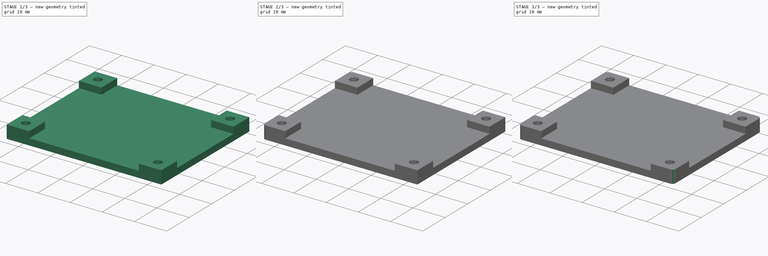
[diagram: build sequence overview — one tinted view per stage of 3, left to right]
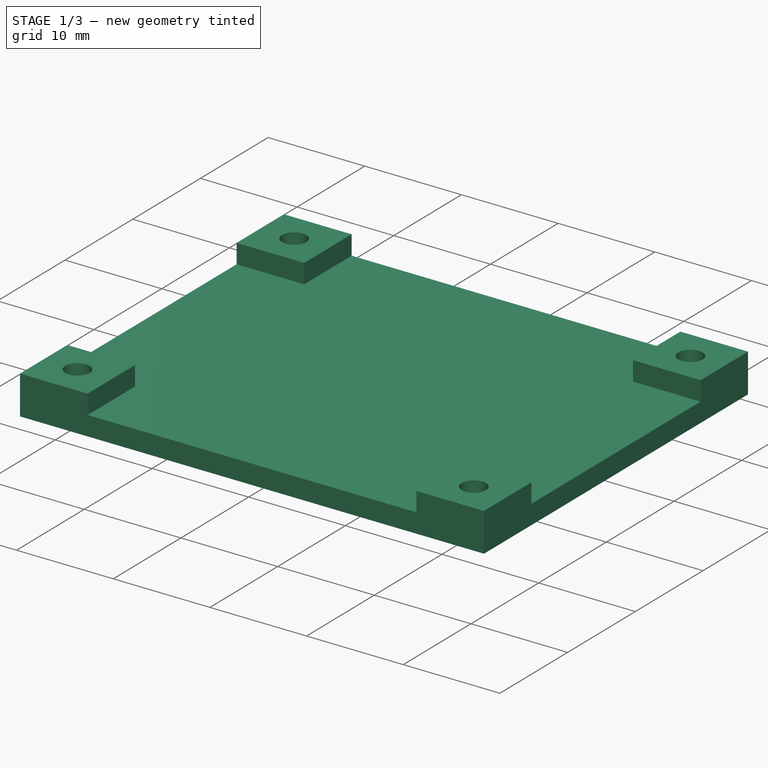
[diagram: stage 1 of 3 — iso view after this stage's code; geometry added in this stage tinted green]
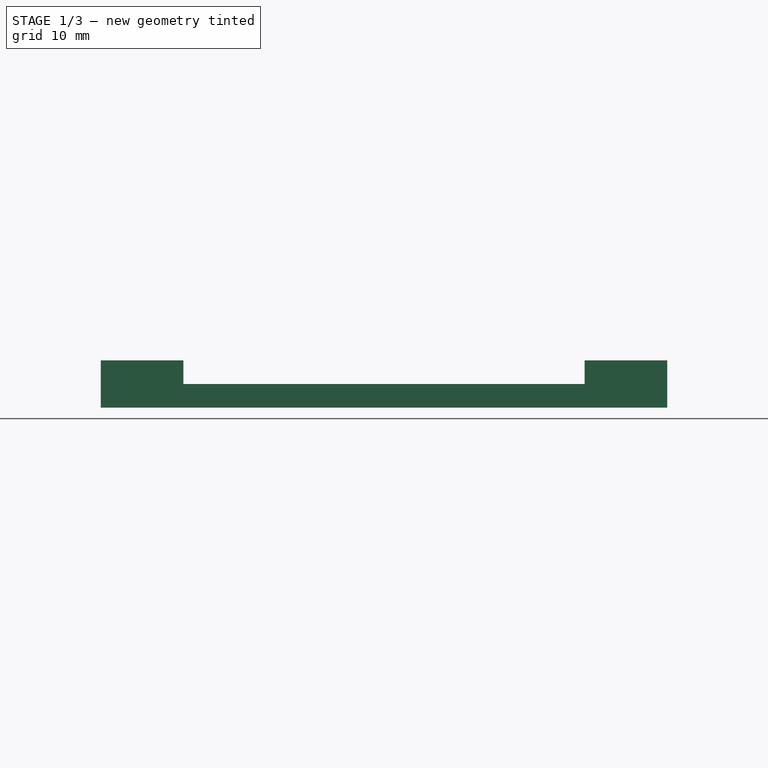
[diagram: stage 1 of 3 — front view after this stage's code; geometry added in this stage tinted green]
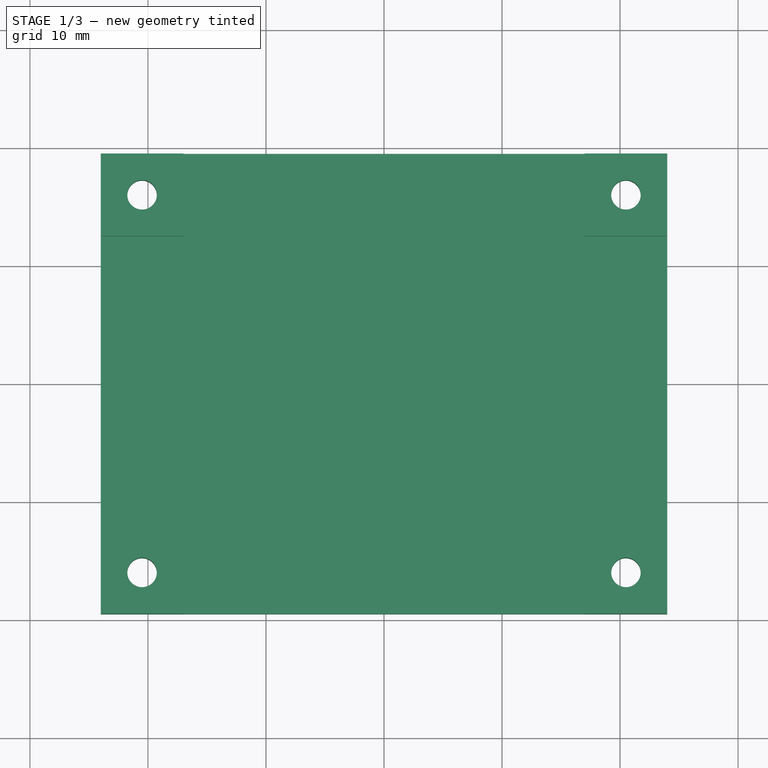
[diagram: stage 1 of 3 — top view after this stage's code; geometry added in this stage tinted green]
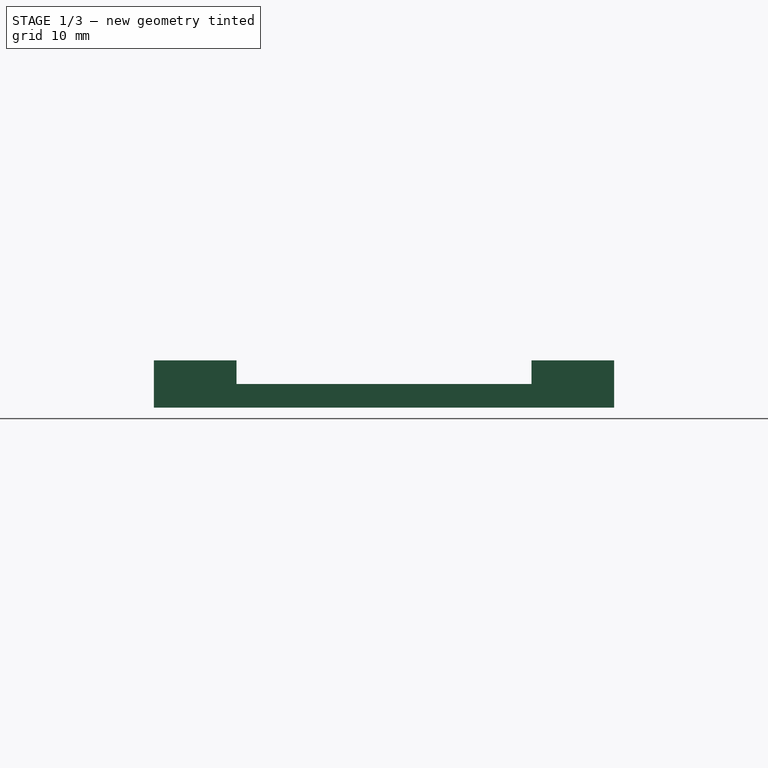
[diagram: stage 1 of 3 — right view after this stage's code; geometry added in this stage tinted green]
FCSTD DOCUMENT  (FreeCAD 0.18R16146 (Git))
Label: thermostat front cover
License: All rights reserved
LicenseURL: http://en.wikipedia.org/wiki/All_rights_reserved
objects: PartDesign::Fillet×4, Sketcher::SketchObject×2, PartDesign::Pad×2, PartDesign::Body×1
note: 11 computed .brp shape members not serialized (recipe doc carries the construction recipe); baked Part::Feature solids carry a one-line shape summary decoded from their .brp

FEATURE [Sketcher::SketchObject] Sketch
  MapMode = 5
  Support = -> [XY_Plane]
  sketch-geometry (8):
    g0: LineSegment StartX=-24 StartY=19.5 StartZ=0 EndX=24 EndY=19.5 EndZ=0
    g1: LineSegment StartX=24 StartY=19.5 StartZ=0 EndX=24 EndY=-19.5 EndZ=0
    g2: LineSegment StartX=24 StartY=-19.5 StartZ=0 EndX=-24 EndY=-19.5 EndZ=0
    g3: LineSegment StartX=-24 StartY=-19.5 StartZ=0 EndX=-24 EndY=19.5 EndZ=0
    g4: Circle CenterX=-20.5 CenterY=16 CenterZ=0 NormalX=0 NormalY=0 NormalZ=1 AngleXU=0 Radius=1.25
    g5: Circle CenterX=20.5 CenterY=-16 CenterZ=0 NormalX=0 NormalY=0 NormalZ=1 AngleXU=0 Radius=1.25
    g6: Circle CenterX=20.5 CenterY=16 CenterZ=0 NormalX=0 NormalY=0 NormalZ=1 AngleXU=0 Radius=1.25
    g7: Circle CenterX=-20.5 CenterY=-16 CenterZ=0 NormalX=0 NormalY=0 NormalZ=1 AngleXU=0 Radius=1.25
  constraints (23):
    c: Coincident(g2,g3)
    c: Coincident(g0,g3)
    c: Coincident(g1,g2)
    c: Coincident(g0,g1)
    c: DistanceY(g1,g1) = 39
    c: DistanceX(g0,g0) = 48
    c: Radius(g7) = 1.25
    c: Radius(g4) = 1.25
    c: Radius(g6) = 1.25
    c: Radius(g5) = 1.25
    c: Symmetric(g0,g1,g-1)
    c: Distance(g4,g0) = 3.5
    c: Distance(g4,g3) = 3.5
    c: Distance(g7,g3) = 3.5
    c: Distance(g7,g2) = 3.5
    c: Distance(g5,g2) = 3.5
    c: Distance(g5,g1) = 3.5
    c: Distance(g6,g0) = 3.5
    c: Distance(g6,g1) = 3.5
    c: Vertical(g3)
    c: Vertical(g1)
    c: Horizontal(g0)
    c: Horizontal(g2)
FEATURE [PartDesign::Pad] Pad
  Length = 2
  Length2 = 100
  Profile = -> Sketch
  Type = 0
FEATURE [Sketcher::SketchObject] Sketch001
  ExternalGeometry = -> [Sketch,Pad]
  MapMode = 5
  Placement = pos=(0,0,2) rot=(0,0,1;0rad)
  Support = -> [Pad]
  sketch-geometry (20):
    g0: LineSegment StartX=-17 StartY=19.5 StartZ=0 EndX=-24 EndY=19.5 EndZ=0
    g1: LineSegment StartX=-24 StartY=19.5 StartZ=0 EndX=-24 EndY=12.5 EndZ=0
    g2: LineSegment StartX=-24 StartY=12.5 StartZ=0 EndX=-17 EndY=12.5 EndZ=0
    g3: LineSegment StartX=-17 StartY=12.5 StartZ=0 EndX=-17 EndY=19.5 EndZ=0
    g4: Circle CenterX=-20.5 CenterY=16 CenterZ=0 NormalX=0 NormalY=0 NormalZ=1 AngleXU=0 Radius=1.25
    g5: LineSegment StartX=17 StartY=19.5 StartZ=0 EndX=24 EndY=19.5 EndZ=0
    g6: LineSegment StartX=24 StartY=19.5 StartZ=0 EndX=24 EndY=12.5 EndZ=0
    g7: LineSegment StartX=24 StartY=12.5 StartZ=0 EndX=17 EndY=12.5 EndZ=0
    g8: LineSegment StartX=17 StartY=12.5 StartZ=0 EndX=17 EndY=19.5 EndZ=0
    g9: Circle CenterX=20.5 CenterY=16 CenterZ=0 NormalX=0 NormalY=0 NormalZ=1 AngleXU=0 Radius=1.25
    g10: LineSegment StartX=-17 StartY=-19.5 StartZ=0 EndX=-24 EndY=-19.5 EndZ=0
    g11: LineSegment StartX=-24 StartY=-19.5 StartZ=0 EndX=-24 EndY=-12.5 EndZ=0
    g12: LineSegment StartX=-24 StartY=-12.5 StartZ=0 EndX=-17 EndY=-12.5 EndZ=0
    g13: LineSegment StartX=-17 StartY=-12.5 StartZ=0 EndX=-17 EndY=-19.5 EndZ=0
    g14: Circle CenterX=-20.5 CenterY=-16 CenterZ=0 NormalX=0 NormalY=0 NormalZ=1 AngleXU=0 Radius=1.25
    g15: LineSegment StartX=17 StartY=-19.5 StartZ=0 EndX=24 EndY=-19.5 EndZ=0
    g16: LineSegment StartX=24 StartY=-19.5 StartZ=0 EndX=24 EndY=-12.5 EndZ=0
    g17: LineSegment StartX=24 StartY=-12.5 StartZ=0 EndX=17 EndY=-12.5 EndZ=0
    g18: LineSegment StartX=17 StartY=-12.5 StartZ=0 EndX=17 EndY=-19.5 EndZ=0
    g19: Circle CenterX=20.5 CenterY=-16 CenterZ=0 NormalX=0 NormalY=0 NormalZ=1 AngleXU=0 Radius=1.25
  constraints (53):
    c: Coincident(g0,g1)
    c: Coincident(g1,g2)
    c: Coincident(g2,g3)
    c: Coincident(g3,g0)
    c: Horizontal(g0)
    c: Horizontal(g2)
    c: Vertical(g1)
    c: Vertical(g3)
    c: DistanceX(g0,g0) = 7
    c: DistanceY(g3,g3) = 7
    c: Radius(g4) = 1.25
    c: Symmetric(g0,g2,g4)
    c: DistanceY(g-4,g0) = 0
    c: DistanceX(g-4,g1) = 0
    c: Coincident(g5,g6)
    c: Coincident(g6,g7)
    c: Coincident(g7,g8)
    c: Coincident(g8,g5)
    c: Horizontal(g5)
    c: Horizontal(g7)
    c: Vertical(g6)
    c: Vertical(g8)
    c: Radius(g9) = 1.25
    c: Symmetric(g5,g7,g9)
    c: Coincident(g10,g11)
    c: Coincident(g11,g12)
    c: Coincident(g12,g13)
    c: Coincident(g13,g10)
    c: Horizontal(g10)
    c: Horizontal(g12)
    c: Vertical(g11)
    c: Vertical(g13)
    c: Radius(g14) = 1.25
    c: Symmetric(g10,g12,g14)
    c: Coincident(g15,g16)
    c: Coincident(g16,g17)
    c: Coincident(g17,g18)
    c: Coincident(g18,g15)
    c: Horizontal(g15)
    c: Horizontal(g17)
    c: Vertical(g16)
    c: Vertical(g18)
    c: Radius(g19) = 1.25
    c: Symmetric(g15,g17,g19)
    c: Equal(g3,g8)
    c: Equal(g8,g7)
    c: Equal(g7,g17)
    c: Equal(g17,g18)
    c: Equal(g18,g13)
    c: Equal(g13,g12)
    c: Coincident(g10,g-6)
    c: Coincident(g15,g-6)
    c: Coincident(g5,g-5)
FEATURE [PartDesign::Pad] Pad001
  BaseFeature = -> Pad
  Length = 2
  Length2 = 100
  Profile = -> Sketch001
  Type = 0
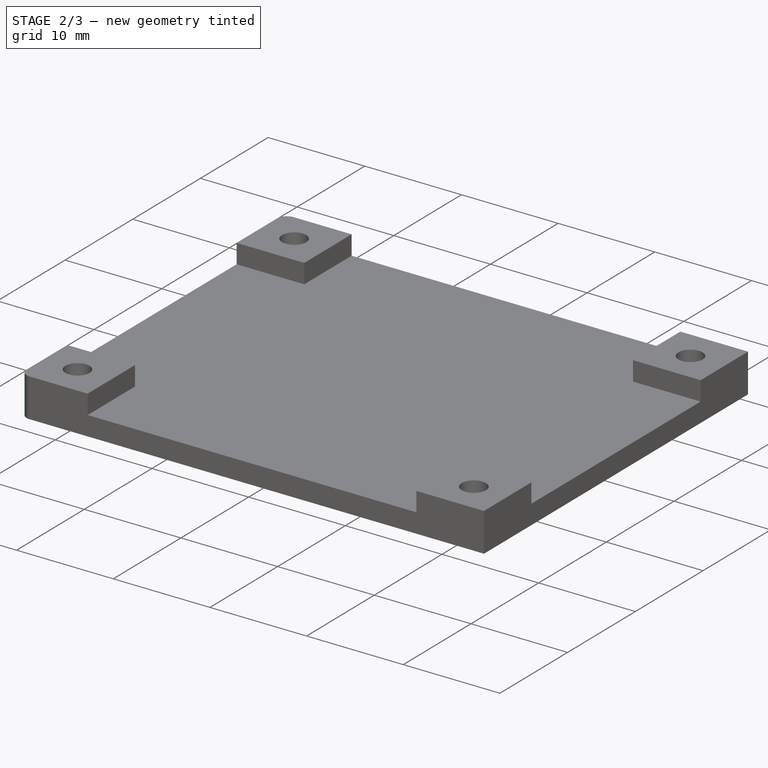
[diagram: stage 2 of 3 — iso view after this stage's code; geometry added in this stage tinted green]
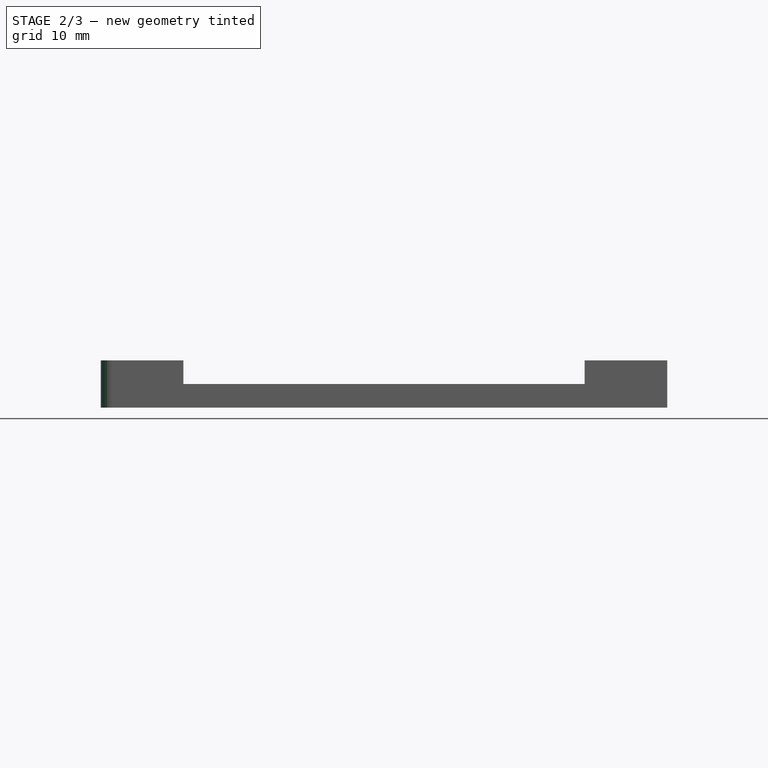
[diagram: stage 2 of 3 — front view after this stage's code; geometry added in this stage tinted green]
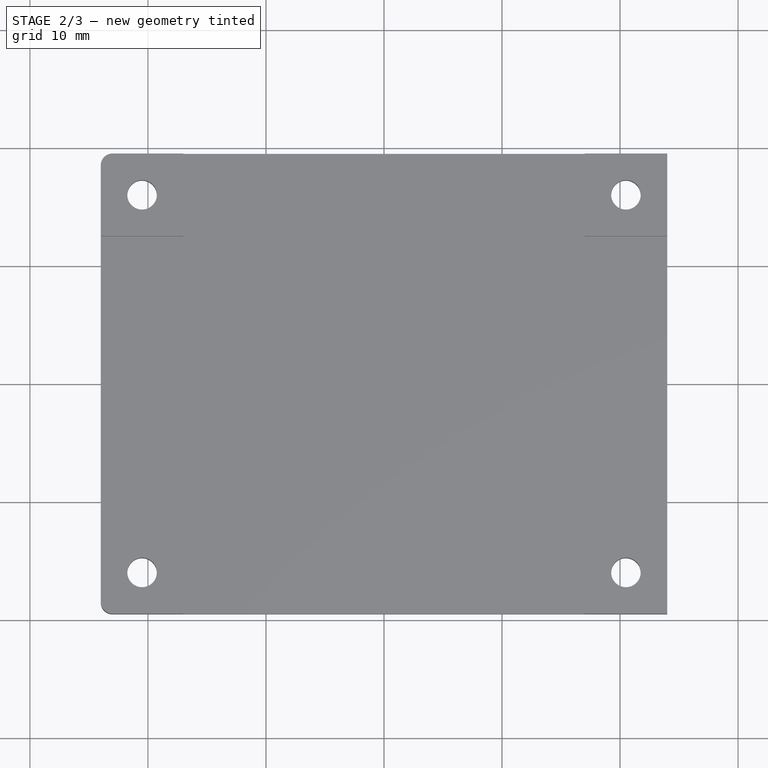
[diagram: stage 2 of 3 — top view after this stage's code; geometry added in this stage tinted green]
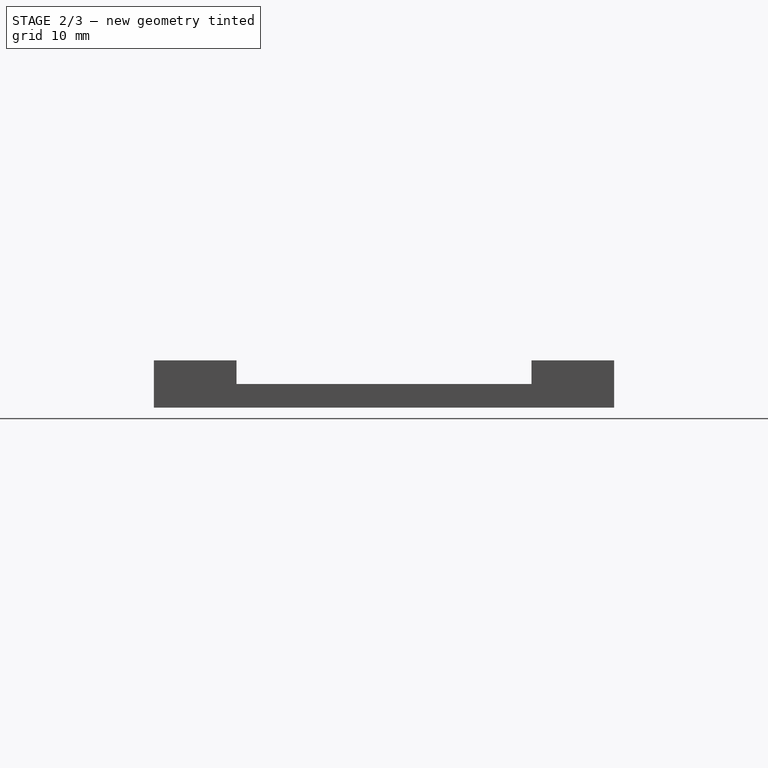
[diagram: stage 2 of 3 — right view after this stage's code; geometry added in this stage tinted green]
FEATURE [PartDesign::Fillet] Fillet
  Base = -> Pad001 [Edge1,Edge23]
  BaseFeature = -> Pad001
  Radius = 1
FEATURE [PartDesign::Fillet] Fillet001
  Base = -> Fillet [Edge37,Edge76]
  BaseFeature = -> Fillet
  Radius = 1
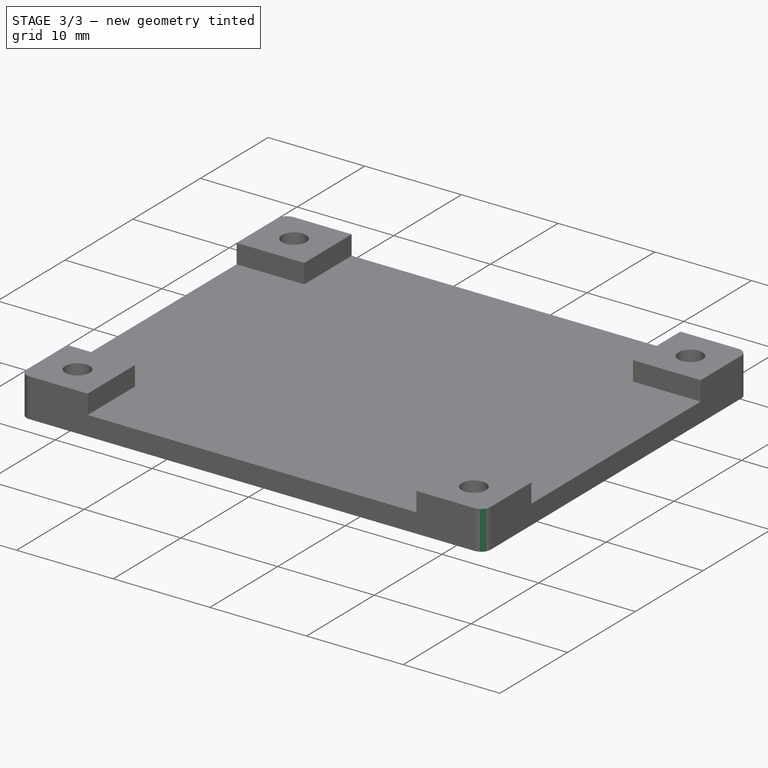
[diagram: stage 3 of 3 — iso view after this stage's code; geometry added in this stage tinted green]
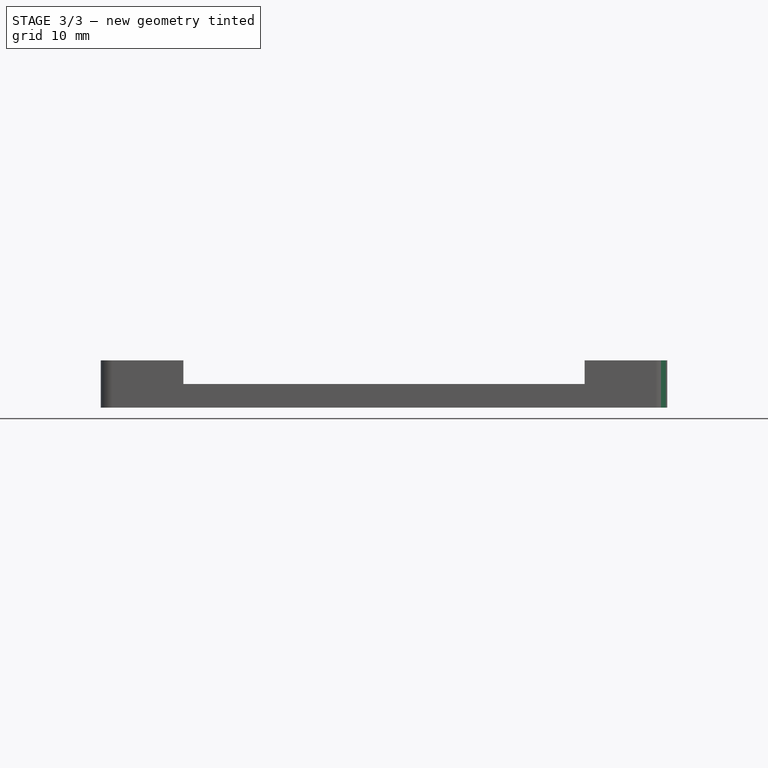
[diagram: stage 3 of 3 — front view after this stage's code; geometry added in this stage tinted green]
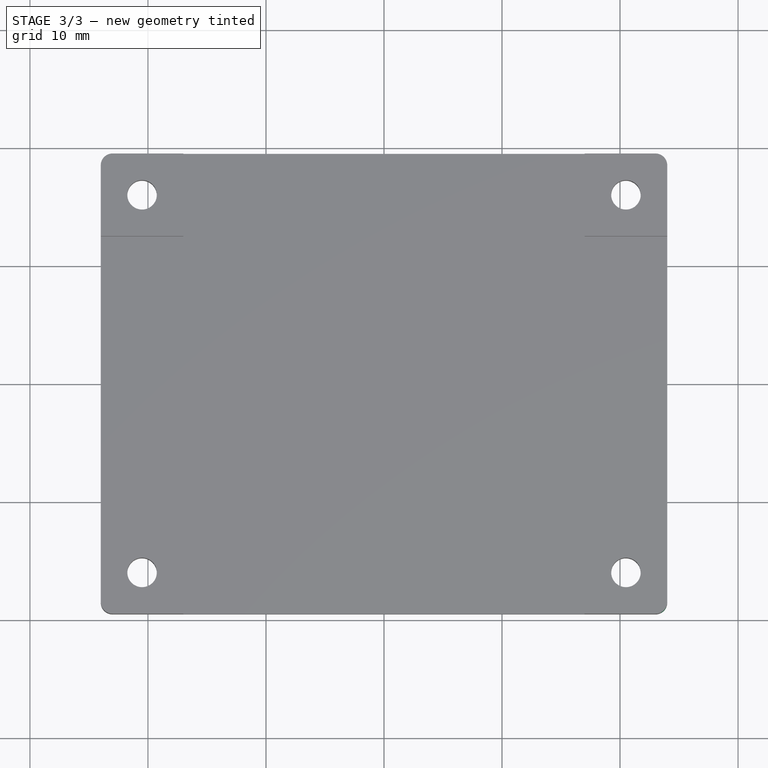
[diagram: stage 3 of 3 — top view after this stage's code; geometry added in this stage tinted green]
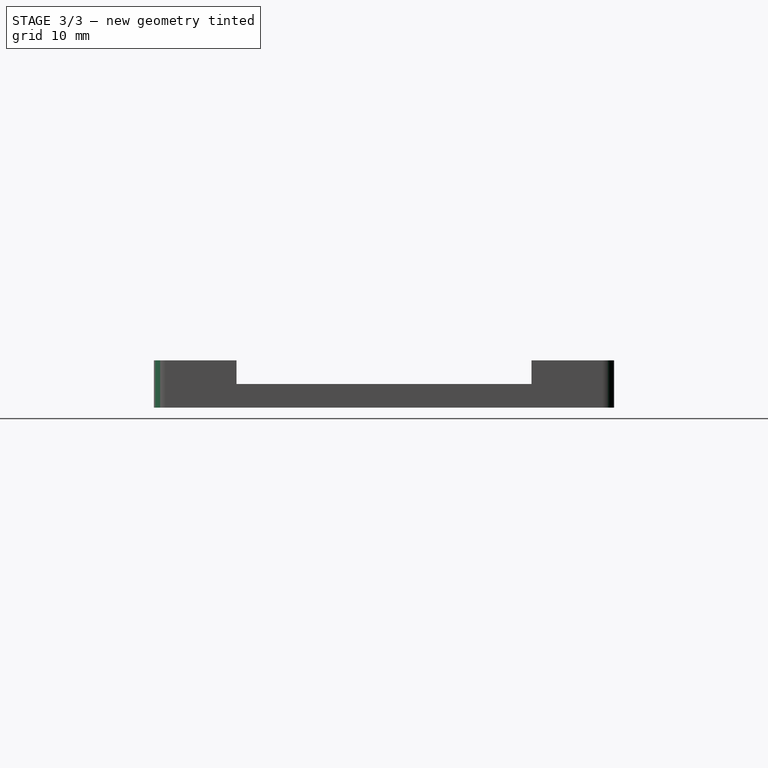
[diagram: stage 3 of 3 — right view after this stage's code; geometry added in this stage tinted green]
FEATURE [PartDesign::Fillet] Fillet002
  Base = -> Fillet001 [Edge20,Edge60]
  BaseFeature = -> Fillet001
  Radius = 1
FEATURE [PartDesign::Fillet] Fillet003
  Base = -> Fillet002 [Edge62,Edge21]
  BaseFeature = -> Fillet002
  Radius = 1
FEATURE [PartDesign::Body] Body
  Group = -> [Sketch,Pad,Sketch001,Pad001,Fillet,Fillet001,Fillet002,Fillet003]
  Origin = -> Origin
  Tip = -> Fillet003
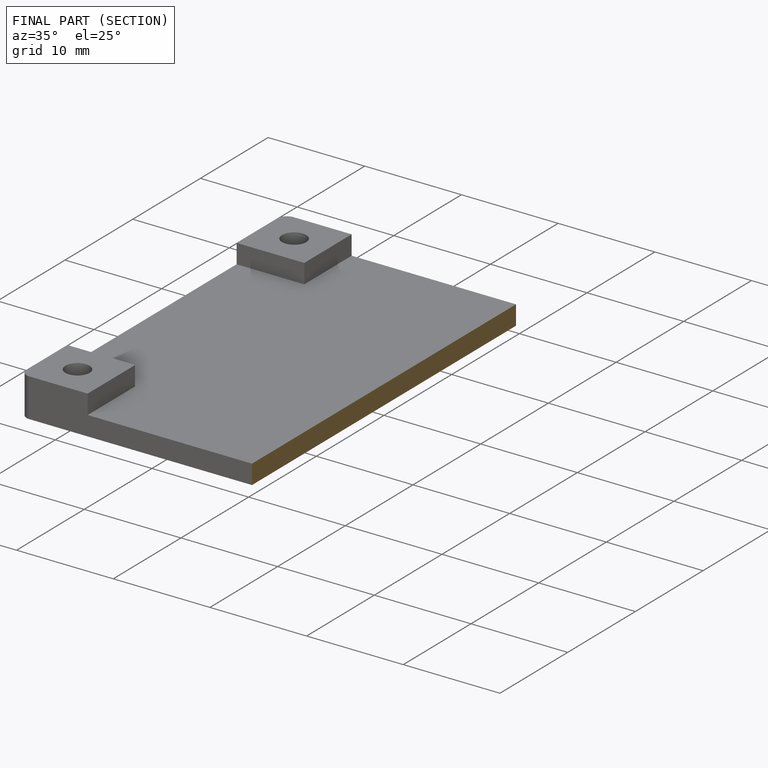
[diagram: finished part — half-section view (interior)]
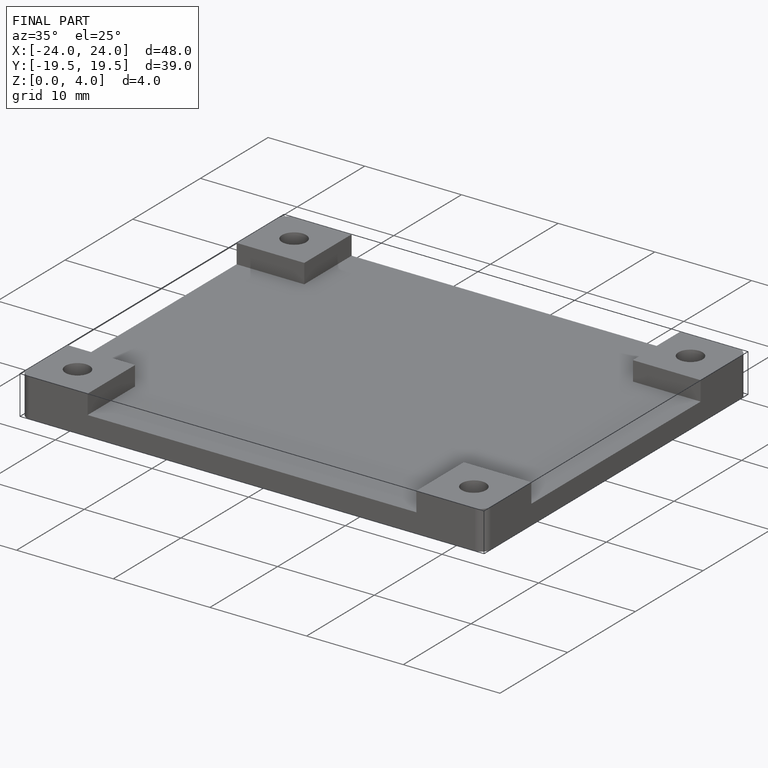
[diagram: finished part — iso view with bounding-box wireframe]
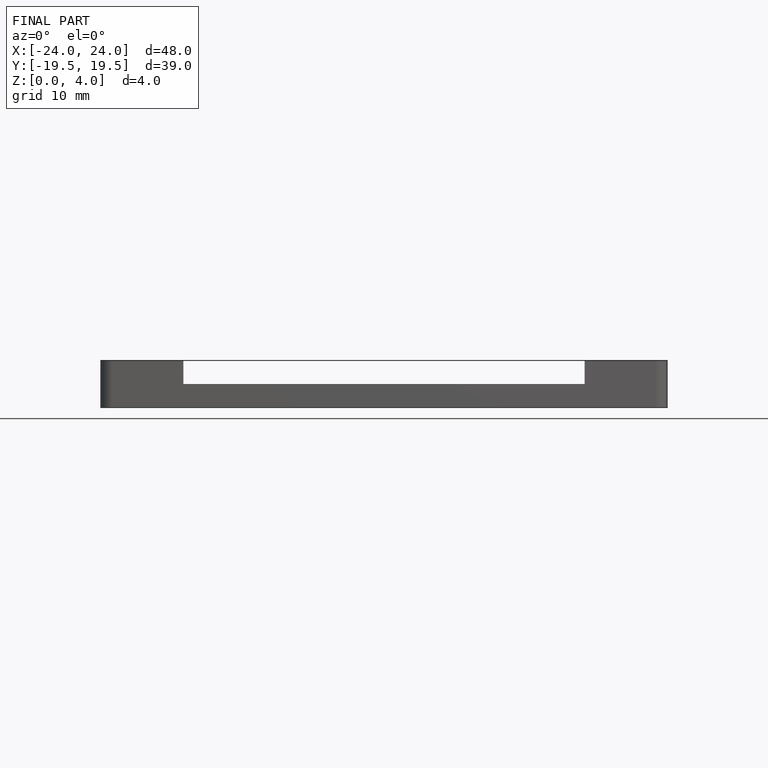
[diagram: finished part — front view with bounding-box wireframe]
